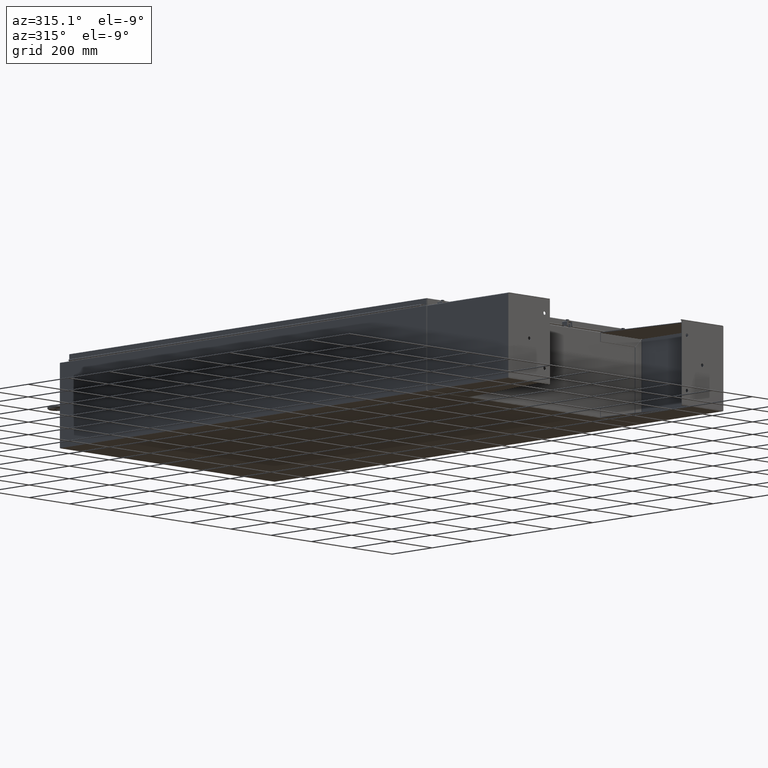
[diagram: clean part render]
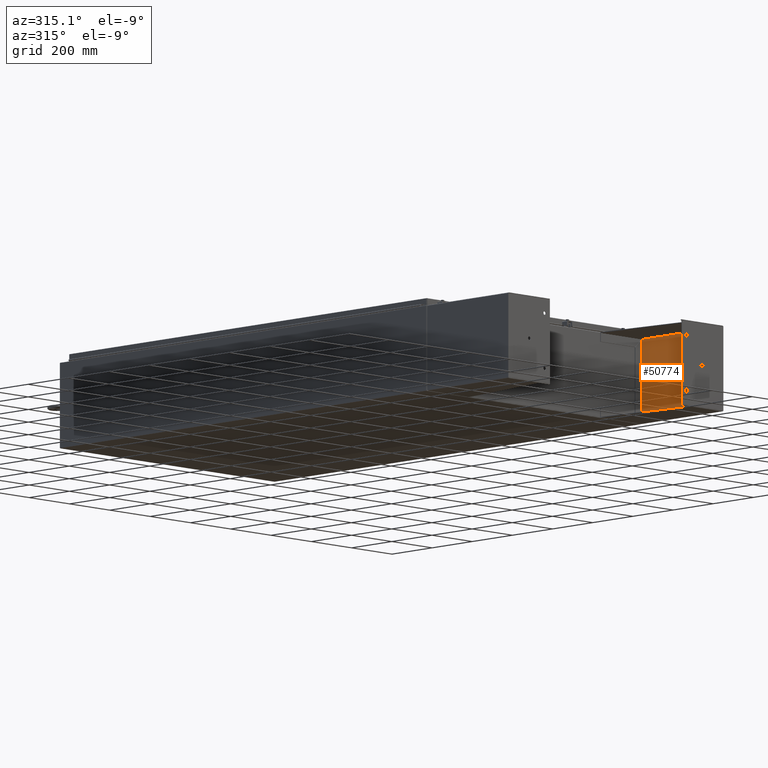
[diagram: same view with one face highlighted and labeled with its STEP entity id]
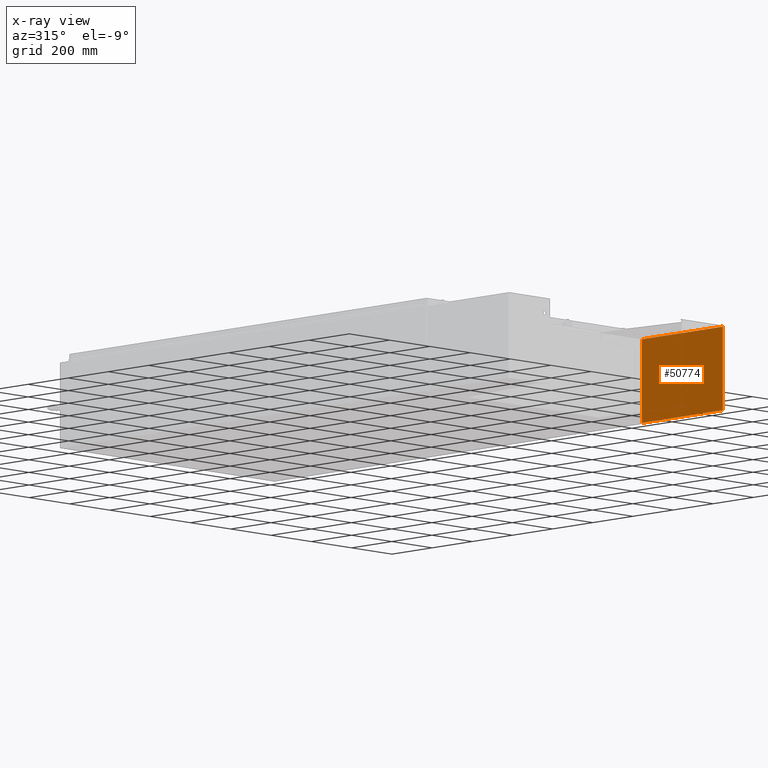
[diagram: x-ray of the same camera — body ghosted, the highlighted face saturated]
A machine part, auxiliary view. The second image highlights one B-rep face of the part: STEP entity #50774.
The next image is the same camera in x-ray: the body ghosted, the highlighted face saturated — about 1% of this face is hidden behind the body in this view.
In plain terms, the highlighted planar face has unit normal (1, 0, -0).
Its self-contained STEP definition (entity closure, byte-faithful):
#2612 = VERTEX_POINT ( 'NONE', #26259 ) ;
#3369 = DIRECTION ( 'NONE',  ( -0.0000000000000000000, 1.000000000000000000, -0.0000000000000000000 ) ) ;
#5293 = DIRECTION ( 'NONE',  ( 1.000000000000000000, 0.0000000000000000000, 0.0000000000000000000 ) ) ;
#7856 = LINE ( 'NONE', #74596, #53260 ) ;
#8844 = EDGE_CURVE ( 'NONE', #72761, #64364, #47100, .T. ) ;
#9936 = PLANE ( 'NONE',  #32659 ) ;
#10054 = ORIENTED_EDGE ( 'NONE', *, *, #56368, .F. ) ;
#12532 = ORIENTED_EDGE ( 'NONE', *, *, #62265, .F. ) ;
#14332 = LINE ( 'NONE', #46784, #30167 ) ;
#15813 = DIRECTION ( 'NONE',  ( -1.000000000000000000, 0.0000000000000000000, -0.0000000000000000000 ) ) ;
#19178 = ORIENTED_EDGE ( 'NONE', *, *, #31850, .F. ) ;
#21560 = ORIENTED_EDGE ( 'NONE', *, *, #8844, .T. ) ;
#23892 = CARTESIAN_POINT ( 'NONE',  ( -5.857000000000000200, -8.000000000000000000, 1.365923996832131600E-016 ) ) ;
#26259 = CARTESIAN_POINT ( 'NONE',  ( -5.857000000000000200, 7.857000000000001100, 1.365923996832131600E-016 ) ) ;
#27778 = FACE_OUTER_BOUND ( 'NONE', #41591, .T. ) ;
#30167 = VECTOR ( 'NONE', #5293, 39.37007874015748100 ) ;
#31302 = VECTOR ( 'NONE', #36145, 39.37007874015748100 ) ;
#31850 = EDGE_CURVE ( 'NONE', #2612, #56405, #14332, .T. ) ;
#32659 = AXIS2_PLACEMENT_3D ( 'NONE', #63047, #51417, #15813 ) ;
#36145 = DIRECTION ( 'NONE',  ( 1.000000000000000000, 0.0000000000000000000, 0.0000000000000000000 ) ) ;
#38555 = LINE ( 'NONE', #72795, #40393 ) ;
#40393 = VECTOR ( 'NONE', #43364, 39.37007874015748100 ) ;
#41591 = EDGE_LOOP ( 'NONE', ( #19178, #12532, #21560, #10054 ) ) ;
#43364 = DIRECTION ( 'NONE',  ( -0.0000000000000000000, -1.000000000000000000, -0.0000000000000000000 ) ) ;
#46784 = CARTESIAN_POINT ( 'NONE',  ( -5.857000000000000200, 7.857000000000001100, 1.365923996832131600E-016 ) ) ;
#47100 = LINE ( 'NONE', #54028, #31302 ) ;
#50774 = ADVANCED_FACE ( 'NONE', ( #27778 ), #9936, .F. ) ;
#50907 = CARTESIAN_POINT ( 'NONE',  ( 5.857000000000000200, -7.999999999999997300, 1.365923996832131600E-016 ) ) ;
#51417 = DIRECTION ( 'NONE',  ( 0.0000000000000000000, 0.0000000000000000000, -1.000000000000000000 ) ) ;
#53260 = VECTOR ( 'NONE', #3369, 39.37007874015748100 ) ;
#54028 = CARTESIAN_POINT ( 'NONE',  ( -6.000000000000000900, -7.999999999999999100, 0.0000000000000000000 ) ) ;
#56368 = EDGE_CURVE ( 'NONE', #56405, #64364, #38555, .T. ) ;
#56405 = VERTEX_POINT ( 'NONE', #73052 ) ;
#62265 = EDGE_CURVE ( 'NONE', #72761, #2612, #7856, .T. ) ;
#63047 = CARTESIAN_POINT ( 'NONE',  ( 5.999999999999996400, 8.000000000000001800, 0.0000000000000000000 ) ) ;
#64364 = VERTEX_POINT ( 'NONE', #50907 ) ;
#72761 = VERTEX_POINT ( 'NONE', #23892 ) ;
#72795 = CARTESIAN_POINT ( 'NONE',  ( 5.857000000000000200, 8.000000000000001800, 1.365923996832131600E-016 ) ) ;
#73052 = CARTESIAN_POINT ( 'NONE',  ( 5.857000000000000200, 7.857000000000001100, 1.365923996832131600E-016 ) ) ;
#74596 = CARTESIAN_POINT ( 'NONE',  ( -5.857000000000000200, -7.999999999999999100, 1.365923996832131600E-016 ) ) ;